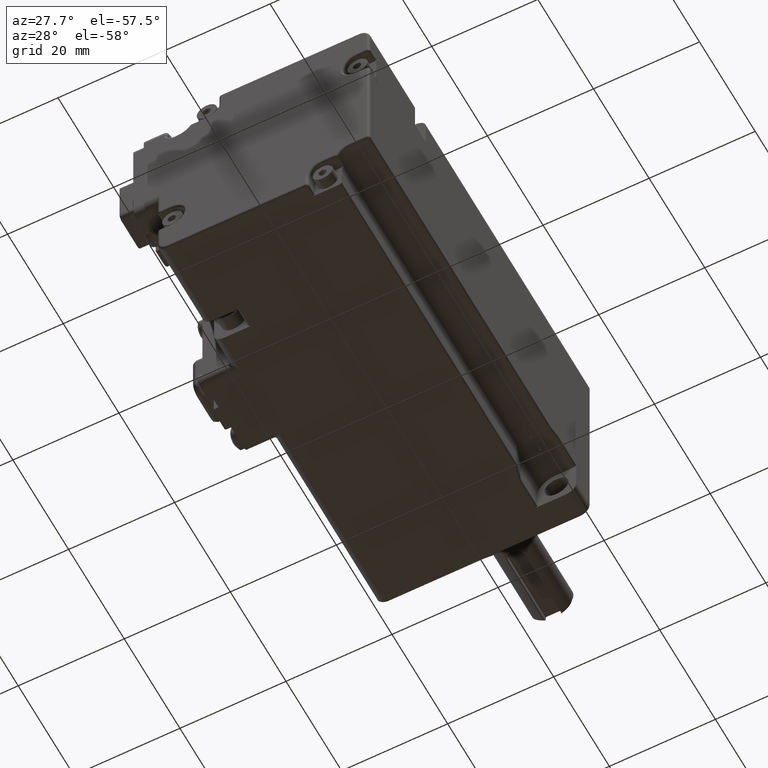
[diagram: clean part render]
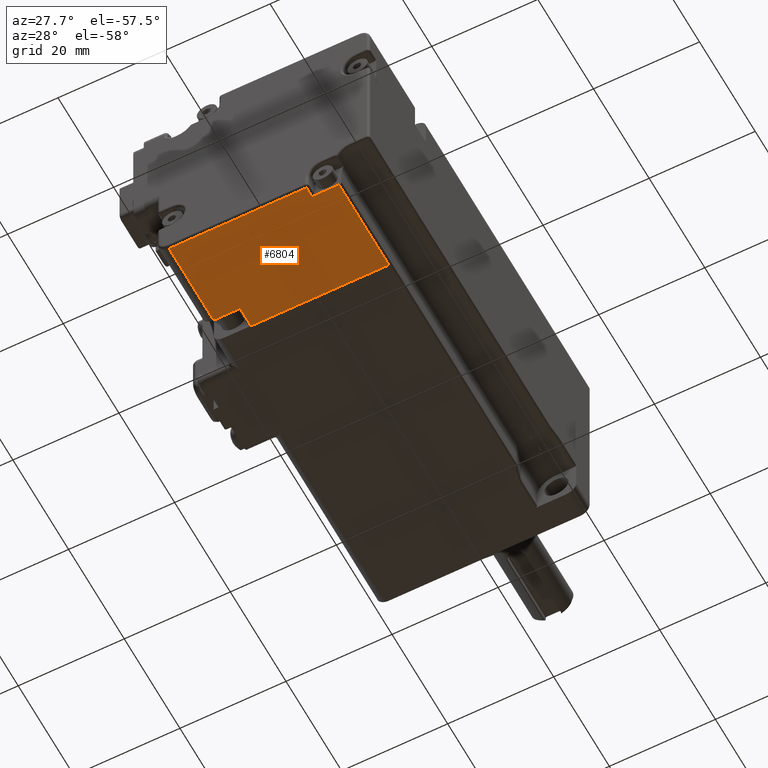
[diagram: same view with one face highlighted and labeled with its STEP entity id]
A machine part, auxiliary view. The second image highlights one B-rep face of the part: STEP entity #6804.
In plain terms, the highlighted planar face has unit normal (-0, 0, 1).
Its self-contained STEP definition (entity closure, byte-faithful):
#775 = CARTESIAN_POINT ( 'NONE',  ( -18.00000000000001421, -7.899999999999990585, -20.00000000000000355 ) ) ;
#1108 = PLANE ( 'NONE',  #23913 ) ;
#1151 = EDGE_CURVE ( 'NONE', #8780, #19806, #6667, .T. ) ;
#1363 = CARTESIAN_POINT ( 'NONE',  ( 7.916336843204041074, -21.89999999999998792, -20.00000000000001421 ) ) ;
#1773 = EDGE_LOOP ( 'NONE', ( #20224, #9266, #21895, #11217, #18401, #8362, #17823, #2939 ) ) ;
#2087 = CARTESIAN_POINT ( 'NONE',  ( -13.00345596729062692, -7.899999999999990585, -20.00000000000000711 ) ) ;
#2184 = VERTEX_POINT ( 'NONE', #1363 ) ;
#2842 = LINE ( 'NONE', #18576, #8889 ) ;
#2939 = ORIENTED_EDGE ( 'NONE', *, *, #3068, .T. ) ;
#3068 = EDGE_CURVE ( 'NONE', #8806, #8223, #23574, .T. ) ;
#3397 = DIRECTION ( 'NONE',  ( -6.123233995736767268E-17, -1.000000000000000000, 2.092431894514851256E-18 ) ) ;
#4034 = VECTOR ( 'NONE', #11938, 1000.000000000000000 ) ;
#4304 = CARTESIAN_POINT ( 'NONE',  ( -13.00345596729062692, -4.499999999999990230, -20.00000000000001421 ) ) ;
#4719 = CARTESIAN_POINT ( 'NONE',  ( 13.00345596729059139, -3.999999999999989786, -20.00000000000001066 ) ) ;
#4855 = CARTESIAN_POINT ( 'NONE',  ( -13.50345596729062692, -7.899999999999990585, -20.00000000000000711 ) ) ;
#5161 = CARTESIAN_POINT ( 'NONE',  ( -13.00345596729061981, -3.999999999999989786, -20.00000000000001421 ) ) ;
#6036 = VECTOR ( 'NONE', #3397, 1000.000000000000000 ) ;
#6667 = LINE ( 'NONE', #24500, #8125 ) ;
#6751 = LINE ( 'NONE', #4304, #22455 ) ;
#6804 = ADVANCED_FACE ( 'NONE', ( #11066 ), #1108, .F. ) ;
#6850 = DIRECTION ( 'NONE',  ( 1.000000000000000000, -6.123233995737319471E-17, 5.709839307956046242E-16 ) ) ;
#7064 = DIRECTION ( 'NONE',  ( -1.742641244834368312E-17, 2.092431894514499967E-18, 1.000000000000000000 ) ) ;
#8125 = VECTOR ( 'NONE', #12986, 1000.000000000000000 ) ;
#8223 = VERTEX_POINT ( 'NONE', #775 ) ;
#8362 = ORIENTED_EDGE ( 'NONE', *, *, #11462, .T. ) ;
#8600 = EDGE_CURVE ( 'NONE', #12782, #8223, #14271, .T. ) ;
#8780 = VERTEX_POINT ( 'NONE', #11043 ) ;
#8806 = VERTEX_POINT ( 'NONE', #10901 ) ;
#8889 = VECTOR ( 'NONE', #6850, 1000.000000000000000 ) ;
#9127 = LINE ( 'NONE', #9387, #21308 ) ;
#9266 = ORIENTED_EDGE ( 'NONE', *, *, #10311, .T. ) ;
#9387 = CARTESIAN_POINT ( 'NONE',  ( 13.50345596729059139, -23.89999999999998792, -20.00000000000001066 ) ) ;
#10311 = EDGE_CURVE ( 'NONE', #12782, #15734, #6751, .T. ) ;
#10901 = CARTESIAN_POINT ( 'NONE',  ( -18.00000000000001421, -23.89999999999998792, -20.00000000000001066 ) ) ;
#11043 = CARTESIAN_POINT ( 'NONE',  ( 13.00345596729059139, -3.999999999999989786, -20.00000000000001066 ) ) ;
#11066 = FACE_OUTER_BOUND ( 'NONE', #1773, .T. ) ;
#11181 = CARTESIAN_POINT ( 'NONE',  ( 7.916336843204041074, -23.89999999999998792, -20.00000000000001066 ) ) ;
#11217 = ORIENTED_EDGE ( 'NONE', *, *, #1151, .T. ) ;
#11462 = EDGE_CURVE ( 'NONE', #2184, #19356, #23172, .T. ) ;
#11938 = DIRECTION ( 'NONE',  ( 6.123233995736767268E-17, 1.000000000000000000, -2.092431894514851256E-18 ) ) ;
#12730 = DIRECTION ( 'NONE',  ( -1.000000000000000000, 6.123233995737319471E-17, 1.110223024625156294E-16 ) ) ;
#12782 = VERTEX_POINT ( 'NONE', #2087 ) ;
#12986 = DIRECTION ( 'NONE',  ( -6.123233995736767268E-17, -1.000000000000000000, 2.092431894514851256E-18 ) ) ;
#13466 = CARTESIAN_POINT ( 'NONE',  ( 7.916336843204042850, -4.499999999999990230, -20.00000000000001066 ) ) ;
#14271 = LINE ( 'NONE', #4855, #19073 ) ;
#14273 = LINE ( 'NONE', #4719, #23629 ) ;
#15734 = VERTEX_POINT ( 'NONE', #5161 ) ;
#17823 = ORIENTED_EDGE ( 'NONE', *, *, #18555, .T. ) ;
#18401 = ORIENTED_EDGE ( 'NONE', *, *, #19973, .F. ) ;
#18555 = EDGE_CURVE ( 'NONE', #19356, #8806, #9127, .T. ) ;
#18576 = CARTESIAN_POINT ( 'NONE',  ( 13.50345596729059139, -21.89999999999998792, -20.00000000000001066 ) ) ;
#18661 = CARTESIAN_POINT ( 'NONE',  ( 13.50345596729059316, -4.499999999999990230, -20.00000000000001066 ) ) ;
#19073 = VECTOR ( 'NONE', #12730, 1000.000000000000000 ) ;
#19356 = VERTEX_POINT ( 'NONE', #11181 ) ;
#19416 = CARTESIAN_POINT ( 'NONE',  ( -18.00000000000001421, -7.899999999999990585, -20.00000000000001066 ) ) ;
#19517 = CARTESIAN_POINT ( 'NONE',  ( 13.00345596729058961, -21.89999999999998792, -20.00000000000001066 ) ) ;
#19806 = VERTEX_POINT ( 'NONE', #19517 ) ;
#19973 = EDGE_CURVE ( 'NONE', #2184, #19806, #2842, .T. ) ;
#20224 = ORIENTED_EDGE ( 'NONE', *, *, #8600, .F. ) ;
#21146 = DIRECTION ( 'NONE',  ( 1.000000000000000000, -6.123233995737319471E-17, 1.742641244834368312E-17 ) ) ;
#21308 = VECTOR ( 'NONE', #25182, 1000.000000000000000 ) ;
#21895 = ORIENTED_EDGE ( 'NONE', *, *, #21972, .F. ) ;
#21972 = EDGE_CURVE ( 'NONE', #8780, #15734, #14273, .T. ) ;
#22455 = VECTOR ( 'NONE', #24337, 1000.000000000000000 ) ;
#23172 = LINE ( 'NONE', #13466, #6036 ) ;
#23574 = LINE ( 'NONE', #19416, #4034 ) ;
#23629 = VECTOR ( 'NONE', #24375, 1000.000000000000000 ) ;
#23913 = AXIS2_PLACEMENT_3D ( 'NONE', #18661, #7064, #21146 ) ;
#24337 = DIRECTION ( 'NONE',  ( 6.123233995736767268E-17, 1.000000000000000000, -2.092431894514851256E-18 ) ) ;
#24375 = DIRECTION ( 'NONE',  ( -1.000000000000000000, 6.123233995737319471E-17, -2.238250010231005104E-17 ) ) ;
#24500 = CARTESIAN_POINT ( 'NONE',  ( 13.00345596729058961, -21.89999999999998792, -20.00000000000001066 ) ) ;
#25182 = DIRECTION ( 'NONE',  ( -1.000000000000000000, 6.123233995737319471E-17, -1.742641244834368312E-17 ) ) ;